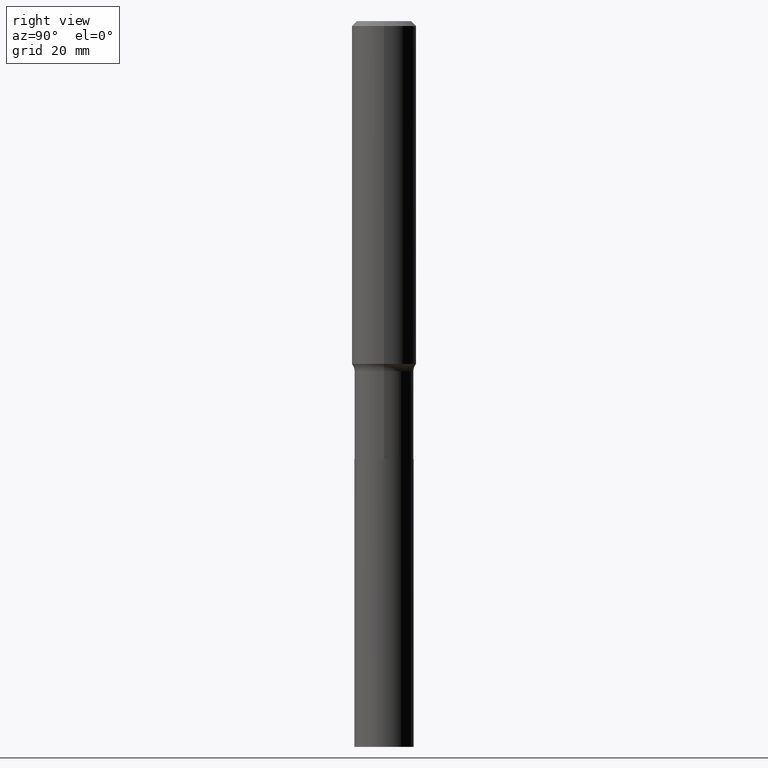
[diagram: clean part render]
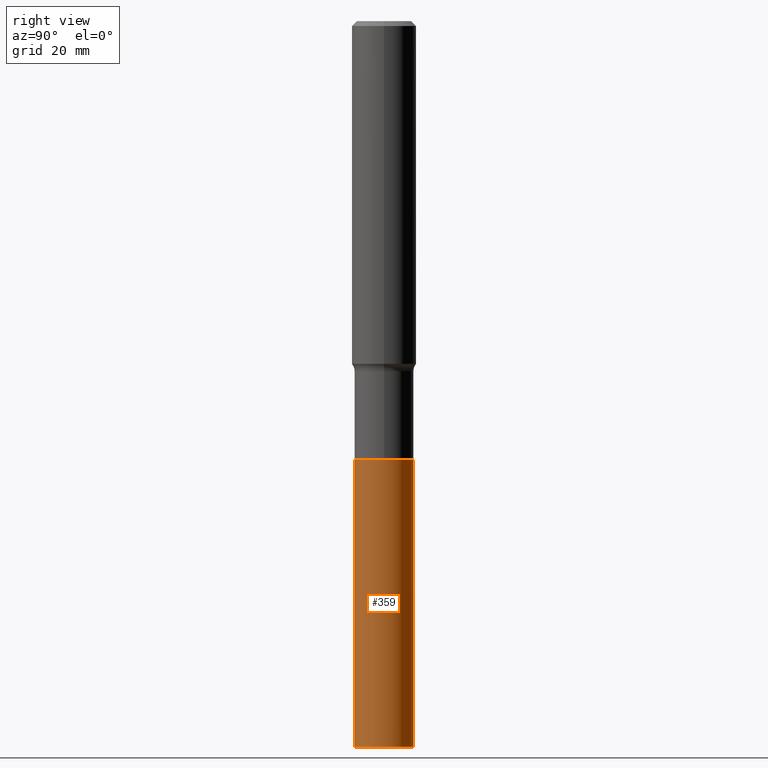
[diagram: same view with one face highlighted and labeled with its STEP entity id]
A machine part, right view. The second image highlights one B-rep face of the part: STEP entity #359.
In plain terms, the highlighted cylindrical surface (edge-blend (fillet) strip) has radius 5.5004 mm, axis along (-0, 0, 1).
Its self-contained STEP definition (entity closure, byte-faithful):
#1 = CARTESIAN_POINT ( 'NONE',  ( 1.538680294288627061E-15, 0.2165499999999888070, -3.209000000000001407 ) ) ;
#8 = CARTESIAN_POINT ( 'NONE',  ( 1.299823801295359673E-28, -1.855640517026451512E-14, -5.315000000000001279 ) ) ;
#20 = CARTESIAN_POINT ( 'NONE',  ( 7.847509399048105518E-29, -1.120416361634765640E-14, -3.209000000000000519 ) ) ;
#57 = CIRCLE ( 'NONE', #69, 0.2165500000000000203 ) ;
#69 = AXIS2_PLACEMENT_3D ( 'NONE', #8, #160, #264 ) ;
#78 = EDGE_CURVE ( 'NONE', #290, #217, #202, .T. ) ;
#111 = ORIENTED_EDGE ( 'NONE', *, *, #78, .F. ) ;
#112 = DIRECTION ( 'NONE',  ( -2.445740082576205296E-29, 3.491092855611041770E-15, 1.000000000000000000 ) ) ;
#141 = DIRECTION ( 'NONE',  ( -2.445740082576205576E-29, 3.491092855611041770E-15, 1.000000000000000000 ) ) ;
#154 = CYLINDRICAL_SURFACE ( 'NONE', #163, 0.2165500000000000203 ) ;
#158 = EDGE_LOOP ( 'NONE', ( #272, #265, #380, #111 ) ) ;
#160 = DIRECTION ( 'NONE',  ( -2.445740082576205296E-29, 3.491092855611041770E-15, 1.000000000000000000 ) ) ;
#163 = AXIS2_PLACEMENT_3D ( 'NONE', #20, #112, #196 ) ;
#176 = CARTESIAN_POINT ( 'NONE',  ( -1.512160567852882528E-15, -0.2165500000000112057, -3.209000000000000075 ) ) ;
#189 = FACE_OUTER_BOUND ( 'NONE', #158, .T. ) ;
#196 = DIRECTION ( 'NONE',  ( -6.982962677686265133E-15, -1.000000000000000000, 2.523064413451178124E-15 ) ) ;
#202 = LINE ( 'NONE', #176, #302 ) ;
#214 = CARTESIAN_POINT ( 'NONE',  ( -1.512160567852830858E-15, -0.2165500000000185610, -5.315000000000000391 ) ) ;
#217 = VERTEX_POINT ( 'NONE', #435 ) ;
#226 = AXIS2_PLACEMENT_3D ( 'NONE', #362, #442, #333 ) ;
#231 = EDGE_CURVE ( 'NONE', #294, #258, #393, .T. ) ;
#258 = VERTEX_POINT ( 'NONE', #1 ) ;
#264 = DIRECTION ( 'NONE',  ( -6.982962677686265133E-15, -1.000000000000000000, 5.046128826902356247E-15 ) ) ;
#265 = ORIENTED_EDGE ( 'NONE', *, *, #231, .T. ) ;
#272 = ORIENTED_EDGE ( 'NONE', *, *, #402, .T. ) ;
#283 = CARTESIAN_POINT ( 'NONE',  ( 1.538680294288575194E-15, 0.2165499999999888070, -3.209000000000001407 ) ) ;
#290 = VERTEX_POINT ( 'NONE', #214 ) ;
#294 = VERTEX_POINT ( 'NONE', #399 ) ;
#302 = VECTOR ( 'NONE', #315, 39.37007874015748143 ) ;
#315 = DIRECTION ( 'NONE',  ( -2.445740082576205576E-29, 3.491092855611041770E-15, 1.000000000000000000 ) ) ;
#326 = VECTOR ( 'NONE', #141, 39.37007874015748143 ) ;
#333 = DIRECTION ( 'NONE',  ( -6.982962677686265133E-15, -1.000000000000000000, 2.523064413451178124E-15 ) ) ;
#352 = EDGE_CURVE ( 'NONE', #217, #258, #385, .T. ) ;
#359 = ADVANCED_FACE ( 'NONE', ( #189 ), #154, .T. ) ;
#362 = CARTESIAN_POINT ( 'NONE',  ( 7.847509399048105518E-29, -1.120416361634765640E-14, -3.209000000000000519 ) ) ;
#380 = ORIENTED_EDGE ( 'NONE', *, *, #352, .F. ) ;
#385 = CIRCLE ( 'NONE', #226, 0.2165500000000000203 ) ;
#393 = LINE ( 'NONE', #283, #326 ) ;
#399 = CARTESIAN_POINT ( 'NONE',  ( 1.538680294288601029E-15, 0.2165499999999814795, -5.315000000000003055 ) ) ;
#402 = EDGE_CURVE ( 'NONE', #290, #294, #57, .T. ) ;
#435 = CARTESIAN_POINT ( 'NONE',  ( -1.512160567852882528E-15, -0.2165500000000112057, -3.209000000000000075 ) ) ;
#442 = DIRECTION ( 'NONE',  ( -2.445740082576205296E-29, 3.491092855611041770E-15, 1.000000000000000000 ) ) ;